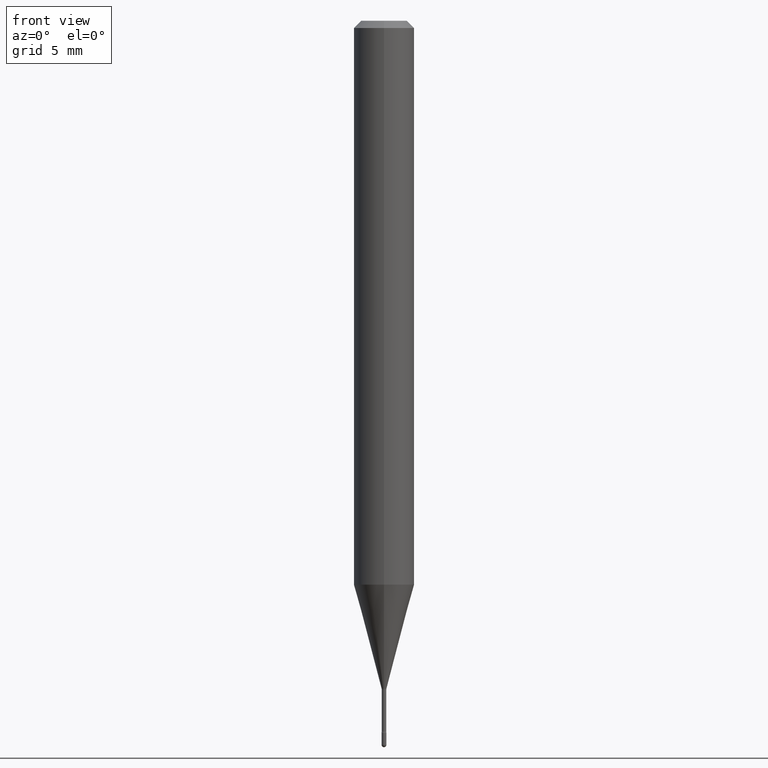
[diagram: clean part render]
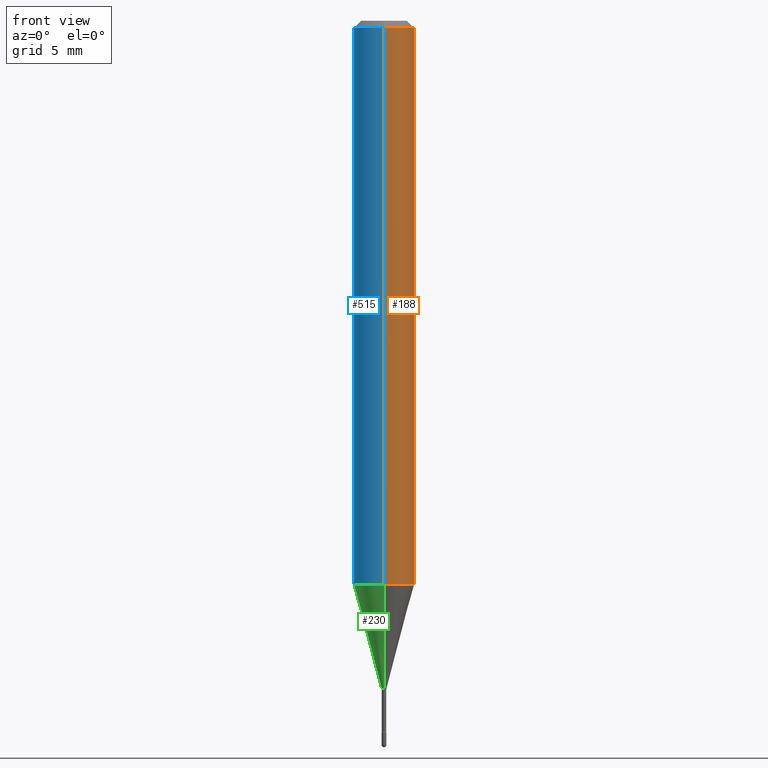
[diagram: same view with three faces highlighted in distinct colors, each labeled with its STEP entity id]
A machine part, front view with three faces highlighted in distinct colors.
Their STEP definitions:

[orange] entity #188 — the highlighted cylindrical surface (edge-blend (fillet) strip) has radius 1.5875 mm, axis along (-0, 0, 1).
#6 = CARTESIAN_POINT ( 'NONE',  ( -1.169113584055446105E-44, 1.669184350826100908E-30, 4.780733988912460139E-16 ) ) ;
#11 = VERTEX_POINT ( 'NONE', #20 ) ;
#16 = FACE_OUTER_BOUND ( 'NONE', #45, .T. ) ;
#20 = CARTESIAN_POINT ( 'NONE',  ( 4.440892098500908179E-16, 0.06249999999999591299, -1.164287463322519978 ) ) ;
#26 = CARTESIAN_POINT ( 'NONE',  ( 4.440892098500912124E-16, 0.06249999999999995143, -0.01500000000000030129 ) ) ;
#31 = AXIS2_PLACEMENT_3D ( 'NONE', #6, #43, #224 ) ;
#43 = DIRECTION ( 'NONE',  ( -2.443524030459947148E-29, 3.494266368371377080E-15, 1.000000000000000000 ) ) ;
#45 = EDGE_LOOP ( 'NONE', ( #50, #486, #377, #352 ) ) ;
#50 = ORIENTED_EDGE ( 'NONE', *, *, #451, .T. ) ;
#59 = VECTOR ( 'NONE', #403, 39.37007874015748143 ) ;
#61 = AXIS2_PLACEMENT_3D ( 'NONE', #62, #411, #332 ) ;
#62 = CARTESIAN_POINT ( 'NONE',  ( 2.844964394991831365E-29, -4.068330526204302951E-15, -1.164287463322519756 ) ) ;
#84 = CIRCLE ( 'NONE', #537, 0.06250000000000000000 ) ;
#104 = EDGE_CURVE ( 'NONE', #392, #151, #372, .T. ) ;
#122 = CARTESIAN_POINT ( 'NONE',  ( -4.364351673553916201E-16, -0.06250000000000000000, 6.964650469144572047E-16 ) ) ;
#151 = VERTEX_POINT ( 'NONE', #342 ) ;
#154 = DIRECTION ( 'NONE',  ( -2.443524030459947148E-29, 3.494266368371376685E-15, 1.000000000000000000 ) ) ;
#188 = ADVANCED_FACE ( 'NONE', ( #16 ), #545, .T. ) ;
#200 = DIRECTION ( 'NONE',  ( -6.982962677686265922E-15, -1.000000000000000000, 3.483106191921935554E-15 ) ) ;
#224 = DIRECTION ( 'NONE',  ( -6.982962677686265922E-15, -1.000000000000000000, 3.494266368371377869E-15 ) ) ;
#273 = VECTOR ( 'NONE', #154, 39.37007874015748143 ) ;
#279 = CARTESIAN_POINT ( 'NONE',  ( -4.364351673553632211E-16, -0.06250000000000408007, -1.164287463322519312 ) ) ;
#332 = DIRECTION ( 'NONE',  ( -6.982962677686265922E-15, -1.000000000000000000, 4.370956789862821150E-15 ) ) ;
#342 = CARTESIAN_POINT ( 'NONE',  ( -4.364351673553912750E-16, -0.06250000000000005551, -0.01499999999999986587 ) ) ;
#352 = ORIENTED_EDGE ( 'NONE', *, *, #104, .F. ) ;
#357 = EDGE_CURVE ( 'NONE', #151, #493, #84, .T. ) ;
#365 = CARTESIAN_POINT ( 'NONE',  ( 3.665286045689940744E-31, -5.241399552557094167E-17, -0.01500000000000008271 ) ) ;
#368 = CARTESIAN_POINT ( 'NONE',  ( 4.440892098500625669E-16, 0.06250000000000000000, 2.596817508680350204E-16 ) ) ;
#371 = LINE ( 'NONE', #368, #59 ) ;
#372 = LINE ( 'NONE', #122, #273 ) ;
#377 = ORIENTED_EDGE ( 'NONE', *, *, #357, .F. ) ;
#392 = VERTEX_POINT ( 'NONE', #279 ) ;
#401 = EDGE_CURVE ( 'NONE', #11, #493, #371, .T. ) ;
#403 = DIRECTION ( 'NONE',  ( -2.443524030459947148E-29, 3.494266368371376685E-15, 1.000000000000000000 ) ) ;
#411 = DIRECTION ( 'NONE',  ( -2.443524030459947148E-29, 3.494266368371377080E-15, 1.000000000000000000 ) ) ;
#451 = EDGE_CURVE ( 'NONE', #392, #11, #483, .T. ) ;
#452 = DIRECTION ( 'NONE',  ( -2.443524030459947148E-29, 3.494266368371377080E-15, 1.000000000000000000 ) ) ;
#483 = CIRCLE ( 'NONE', #61, 0.06250000000000000000 ) ;
#486 = ORIENTED_EDGE ( 'NONE', *, *, #401, .T. ) ;
#493 = VERTEX_POINT ( 'NONE', #26 ) ;
#537 = AXIS2_PLACEMENT_3D ( 'NONE', #365, #452, #200 ) ;
#545 = CYLINDRICAL_SURFACE ( 'NONE', #31, 0.06250000000000000000 ) ;

[blue] entity #515 — the highlighted cylindrical surface (edge-blend (fillet) strip) has radius 1.5875 mm, axis along (-0, 0, 1).
#11 = VERTEX_POINT ( 'NONE', #20 ) ;
#20 = CARTESIAN_POINT ( 'NONE',  ( 4.440892098500908179E-16, 0.06249999999999591299, -1.164287463322519978 ) ) ;
#26 = CARTESIAN_POINT ( 'NONE',  ( 4.440892098500912124E-16, 0.06249999999999995143, -0.01500000000000030129 ) ) ;
#56 = ORIENTED_EDGE ( 'NONE', *, *, #127, .T. ) ;
#59 = VECTOR ( 'NONE', #403, 39.37007874015748143 ) ;
#70 = FACE_OUTER_BOUND ( 'NONE', #241, .T. ) ;
#74 = ORIENTED_EDGE ( 'NONE', *, *, #524, .F. ) ;
#104 = EDGE_CURVE ( 'NONE', #392, #151, #372, .T. ) ;
#122 = CARTESIAN_POINT ( 'NONE',  ( -4.364351673553916201E-16, -0.06250000000000000000, 6.964650469144572047E-16 ) ) ;
#123 = AXIS2_PLACEMENT_3D ( 'NONE', #558, #304, #471 ) ;
#127 = EDGE_CURVE ( 'NONE', #11, #392, #362, .T. ) ;
#131 = CYLINDRICAL_SURFACE ( 'NONE', #475, 0.06250000000000000000 ) ;
#134 = CIRCLE ( 'NONE', #123, 0.06250000000000000000 ) ;
#146 = ORIENTED_EDGE ( 'NONE', *, *, #104, .T. ) ;
#151 = VERTEX_POINT ( 'NONE', #342 ) ;
#154 = DIRECTION ( 'NONE',  ( -2.443524030459947148E-29, 3.494266368371376685E-15, 1.000000000000000000 ) ) ;
#164 = DIRECTION ( 'NONE',  ( -6.982962677686265922E-15, -1.000000000000000000, 3.494266368371377869E-15 ) ) ;
#206 = DIRECTION ( 'NONE',  ( -6.982962677686265922E-15, -1.000000000000000000, 4.370956789862821150E-15 ) ) ;
#241 = EDGE_LOOP ( 'NONE', ( #280, #56, #146, #74 ) ) ;
#246 = CARTESIAN_POINT ( 'NONE',  ( 2.844964394991831365E-29, -4.068330526204302951E-15, -1.164287463322519756 ) ) ;
#273 = VECTOR ( 'NONE', #154, 39.37007874015748143 ) ;
#279 = CARTESIAN_POINT ( 'NONE',  ( -4.364351673553632211E-16, -0.06250000000000408007, -1.164287463322519312 ) ) ;
#280 = ORIENTED_EDGE ( 'NONE', *, *, #401, .F. ) ;
#304 = DIRECTION ( 'NONE',  ( -2.443524030459947148E-29, 3.494266368371377080E-15, 1.000000000000000000 ) ) ;
#308 = DIRECTION ( 'NONE',  ( -2.443524030459947148E-29, 3.494266368371377080E-15, 1.000000000000000000 ) ) ;
#336 = CARTESIAN_POINT ( 'NONE',  ( -1.169113584055446105E-44, 1.669184350826100908E-30, 4.780733988912460139E-16 ) ) ;
#342 = CARTESIAN_POINT ( 'NONE',  ( -4.364351673553912750E-16, -0.06250000000000005551, -0.01499999999999986587 ) ) ;
#362 = CIRCLE ( 'NONE', #555, 0.06250000000000000000 ) ;
#368 = CARTESIAN_POINT ( 'NONE',  ( 4.440892098500625669E-16, 0.06250000000000000000, 2.596817508680350204E-16 ) ) ;
#371 = LINE ( 'NONE', #368, #59 ) ;
#372 = LINE ( 'NONE', #122, #273 ) ;
#392 = VERTEX_POINT ( 'NONE', #279 ) ;
#401 = EDGE_CURVE ( 'NONE', #11, #493, #371, .T. ) ;
#403 = DIRECTION ( 'NONE',  ( -2.443524030459947148E-29, 3.494266368371376685E-15, 1.000000000000000000 ) ) ;
#416 = DIRECTION ( 'NONE',  ( -2.443524030459947148E-29, 3.494266368371377080E-15, 1.000000000000000000 ) ) ;
#471 = DIRECTION ( 'NONE',  ( -6.982962677686265922E-15, -1.000000000000000000, 3.483106191921935554E-15 ) ) ;
#475 = AXIS2_PLACEMENT_3D ( 'NONE', #336, #308, #164 ) ;
#493 = VERTEX_POINT ( 'NONE', #26 ) ;
#515 = ADVANCED_FACE ( 'NONE', ( #70 ), #131, .T. ) ;
#524 = EDGE_CURVE ( 'NONE', #493, #151, #134, .T. ) ;
#555 = AXIS2_PLACEMENT_3D ( 'NONE', #246, #416, #206 ) ;
#558 = CARTESIAN_POINT ( 'NONE',  ( 3.665286045689940744E-31, -5.241399552557094167E-17, -0.01500000000000008271 ) ) ;

[green] entity #230 — the highlighted conical surface has half-angle 15 deg.
#8 = LINE ( 'NONE', #413, #406 ) ;
#11 = VERTEX_POINT ( 'NONE', #20 ) ;
#20 = CARTESIAN_POINT ( 'NONE',  ( 4.440892098500908179E-16, 0.06249999999999591299, -1.164287463322519978 ) ) ;
#22 = CIRCLE ( 'NONE', #418, 0.005211112605663922176 ) ;
#34 = DIRECTION ( 'NONE',  ( -2.443524030459947148E-29, 3.494266368371377080E-15, 1.000000000000000000 ) ) ;
#55 = DIRECTION ( 'NONE',  ( -6.982962677686266711E-15, -1.000000000000000000, 0.000000000000000000 ) ) ;
#102 = DIRECTION ( 'NONE',  ( -1.807323732225327773E-15, -0.2588190451025178529, 0.9659258262890690894 ) ) ;
#119 = VERTEX_POINT ( 'NONE', #329 ) ;
#127 = EDGE_CURVE ( 'NONE', #11, #392, #362, .T. ) ;
#135 = CARTESIAN_POINT ( 'NONE',  ( 3.367402144313870632E-29, -4.815422281500041932E-15, -1.378092501787273605 ) ) ;
#191 = EDGE_LOOP ( 'NONE', ( #442, #270, #448, #225 ) ) ;
#206 = DIRECTION ( 'NONE',  ( -6.982962677686265922E-15, -1.000000000000000000, 4.370956789862821150E-15 ) ) ;
#225 = ORIENTED_EDGE ( 'NONE', *, *, #127, .F. ) ;
#230 = ADVANCED_FACE ( 'NONE', ( #386 ), #429, .T. ) ;
#246 = CARTESIAN_POINT ( 'NONE',  ( 2.844964394991831365E-29, -4.068330526204302951E-15, -1.164287463322519756 ) ) ;
#270 = ORIENTED_EDGE ( 'NONE', *, *, #380, .T. ) ;
#276 = CARTESIAN_POINT ( 'NONE',  ( 2.405581959609744668E-16, 0.005211112605659106584, -1.378092501787273605 ) ) ;
#279 = CARTESIAN_POINT ( 'NONE',  ( -4.364351673553632211E-16, -0.06250000000000408007, -1.164287463322519312 ) ) ;
#302 = CARTESIAN_POINT ( 'NONE',  ( 3.702718207185754248E-17, 0.005211112605659106584, -1.378092501787273605 ) ) ;
#321 = AXIS2_PLACEMENT_3D ( 'NONE', #135, #34, #482 ) ;
#329 = CARTESIAN_POINT ( 'NONE',  ( -3.638900483453792750E-17, -0.005211112605668737768, -1.378092501787273605 ) ) ;
#337 = VERTEX_POINT ( 'NONE', #276 ) ;
#362 = CIRCLE ( 'NONE', #555, 0.06250000000000000000 ) ;
#379 = EDGE_CURVE ( 'NONE', #119, #392, #8, .T. ) ;
#380 = EDGE_CURVE ( 'NONE', #337, #119, #22, .T. ) ;
#386 = FACE_OUTER_BOUND ( 'NONE', #191, .T. ) ;
#392 = VERTEX_POINT ( 'NONE', #279 ) ;
#406 = VECTOR ( 'NONE', #102, 39.37007874015748143 ) ;
#413 = CARTESIAN_POINT ( 'NONE',  ( -3.638900483453792750E-17, -0.005211112605668737768, -1.378092501787273605 ) ) ;
#416 = DIRECTION ( 'NONE',  ( -2.443524030459947148E-29, 3.494266368371377080E-15, 1.000000000000000000 ) ) ;
#418 = AXIS2_PLACEMENT_3D ( 'NONE', #492, #461, #55 ) ;
#420 = LINE ( 'NONE', #302, #510 ) ;
#429 = CONICAL_SURFACE ( 'NONE', #321, 0.005211112605663922176, 0.2617993877991499074 ) ;
#442 = ORIENTED_EDGE ( 'NONE', *, *, #522, .F. ) ;
#448 = ORIENTED_EDGE ( 'NONE', *, *, #379, .T. ) ;
#461 = DIRECTION ( 'NONE',  ( -2.443524030459947148E-29, 3.494266368371377080E-15, 1.000000000000000000 ) ) ;
#473 = DIRECTION ( 'NONE',  ( 1.839019923739597554E-15, 0.2588190451025245697, 0.9659258262890670910 ) ) ;
#482 = DIRECTION ( 'NONE',  ( -6.982962677686266711E-15, -1.000000000000000000, 0.000000000000000000 ) ) ;
#492 = CARTESIAN_POINT ( 'NONE',  ( 3.367402144313870632E-29, -4.815422281500041932E-15, -1.378092501787273605 ) ) ;
#510 = VECTOR ( 'NONE', #473, 39.37007874015748854 ) ;
#522 = EDGE_CURVE ( 'NONE', #337, #11, #420, .T. ) ;
#555 = AXIS2_PLACEMENT_3D ( 'NONE', #246, #416, #206 ) ;